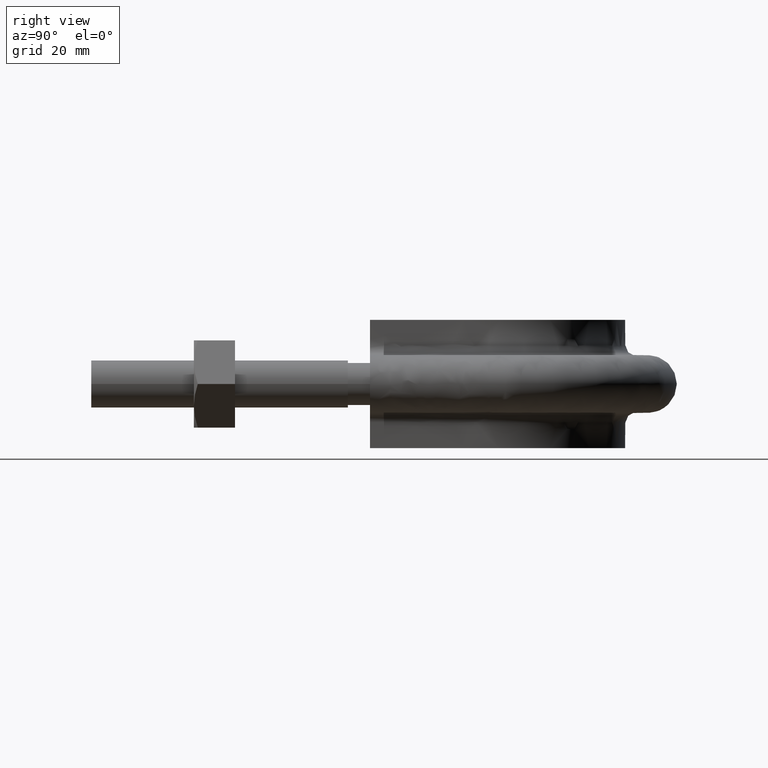
[diagram: clean part render]
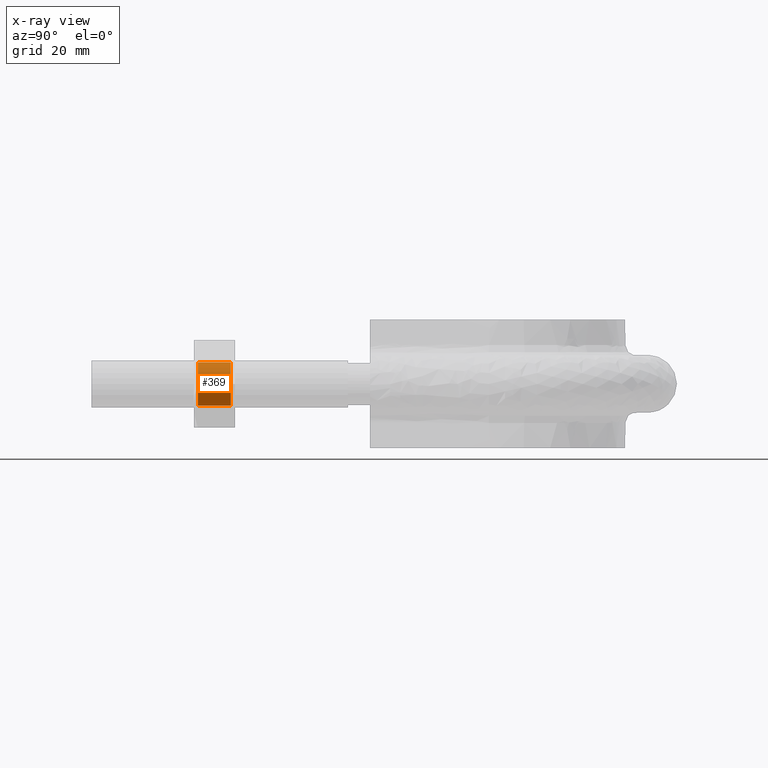
[diagram: x-ray — body ghosted, one internal face saturated and labeled with its STEP entity id]
A machine part, right view, then the same camera in x-ray: the body is ghosted and one INTERNAL B-rep face — a face not visible from any outside direction — is saturated and labeled: STEP entity #369.
In plain terms, the highlighted cylindrical surface (bore or boss wall) has radius 4.188 mm, axis along (0, 1, 0).
Its self-contained STEP definition (entity closure, byte-faithful):
#369 = ADVANCED_FACE( '', ( #514, #515 ), #516, .F. );
#514 = FACE_OUTER_BOUND( '', #1513, .T. );
#515 = FACE_OUTER_BOUND( '', #1514, .T. );
#516 = CYLINDRICAL_SURFACE( '', #1515, 4.18800000000000 );
#1513 = EDGE_LOOP( '', ( #1933 ) );
#1514 = EDGE_LOOP( '', ( #1934 ) );
#1515 = AXIS2_PLACEMENT_3D( '', #1935, #1936, #1937 );
#1933 = ORIENTED_EDGE( '', *, *, #2210, .F. );
#1934 = ORIENTED_EDGE( '', *, *, #2174, .T. );
#1935 = CARTESIAN_POINT( '', ( -31.0000000000000, 27.9999999999973, 8.59718112672381E-015 ) );
#1936 = DIRECTION( '', ( 2.44921270764475E-016, 1.00000000000000, 3.06151588455594E-016 ) );
#1937 = DIRECTION( '', ( -0.866025403784293, 5.90322481812929E-017, 0.500000000000252 ) );
#2174 = EDGE_CURVE( '', #2369, #2369, #2370, .T. );
#2210 = EDGE_CURVE( '', #2425, #2425, #2426, .F. );
#2369 = VERTEX_POINT( '', #2888 );
#2370 = CIRCLE( '', #2889, 4.18800000000000 );
#2425 = VERTEX_POINT( '', #2993 );
#2426 = CIRCLE( '', #2994, 4.18800000000000 );
#2888 = CARTESIAN_POINT( '', ( -31.0000000000000, 27.1879999999973, 4.18800000000001 ) );
#2889 = AXIS2_PLACEMENT_3D( '', #3247, #3248, #3249 );
#2993 = CARTESIAN_POINT( '', ( -31.0000000000000, 20.8119999999973, -4.18799999999999 ) );
#2994 = AXIS2_PLACEMENT_3D( '', #3306, #3307, #3308 );
#3247 = CARTESIAN_POINT( '', ( -31.0000000000000, 27.1879999999973, 8.34858603689787E-015 ) );
#3248 = DIRECTION( '', ( 2.44921270764475E-016, 1.00000000000000, 3.06151588455594E-016 ) );
#3249 = DIRECTION( '', ( 0.000000000000000, -3.06151588455594E-016, 1.00000000000000 ) );
#3306 = CARTESIAN_POINT( '', ( -31.0000000000000, 20.8119999999973, 6.39656350890499E-015 ) );
#3307 = DIRECTION( '', ( -2.44921270764475E-016, -1.00000000000000, -3.06151588455594E-016 ) );
#3308 = DIRECTION( '', ( 0.000000000000000, 3.06151588455594E-016, -1.00000000000000 ) );